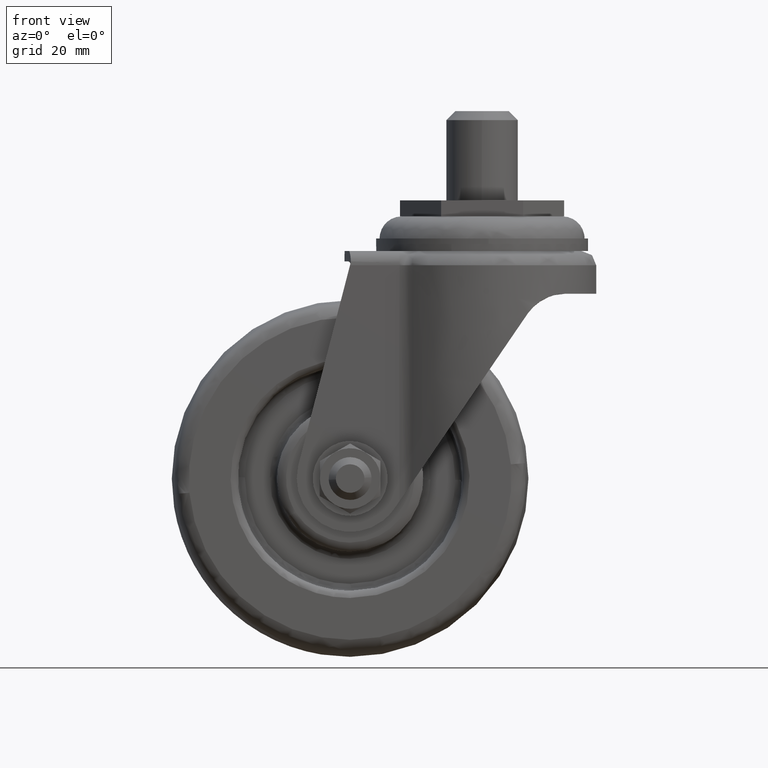
[diagram: clean part render]
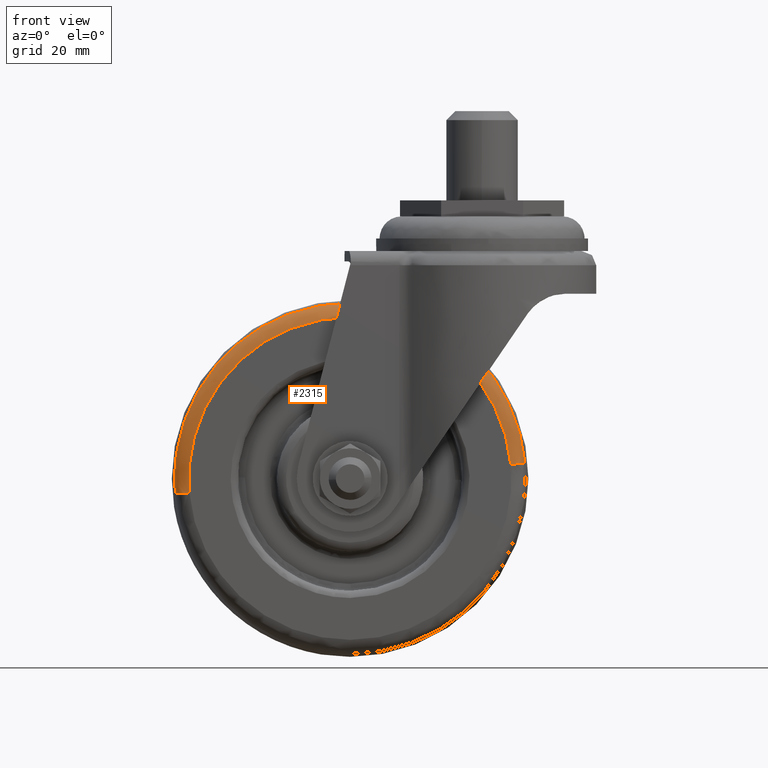
[diagram: same view with one face highlighted and labeled with its STEP entity id]
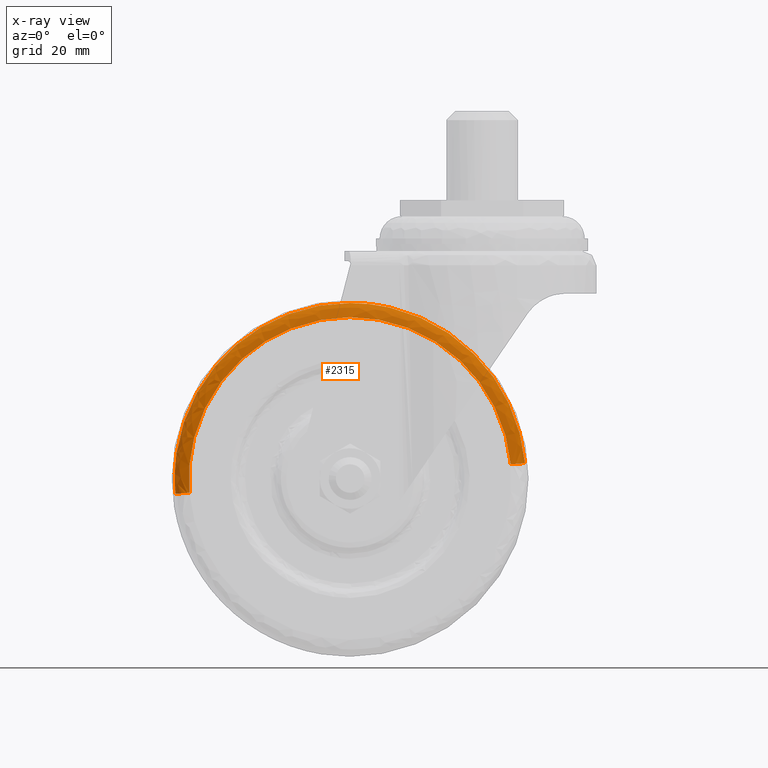
[diagram: x-ray of the same camera — body ghosted, the highlighted face saturated]
A machine part, front view. The second image highlights one B-rep face of the part: STEP entity #2315.
The next image is the same camera in x-ray: the body ghosted, the highlighted face saturated — about 0% of this face is hidden behind the body in this view.
In plain terms, the highlighted face is a freeform B-spline surface patch.
Its self-contained STEP definition (entity closure, byte-faithful):
#1895=CARTESIAN_POINT('',(8.052541164142092,-19.000000000000249,-69.526718090209954));
#1896=VERTEX_POINT('',#1895);
#1912=CARTESIAN_POINT('',(-37.0,-19.000000000000249,-28.272592000000000));
#1913=VERTEX_POINT('',#1912);
#1914=CARTESIAN_POINT('',(8.052541164142093,-19.000000000000245,-69.526718090209954));
#1915=CARTESIAN_POINT('',(4.414249767389972,-19.000000000000242,-28.272591999959747));
#1916=CARTESIAN_POINT('',(-37.0,-19.000000000000249,-28.272592000000000));
#1924=(BOUNDED_CURVE()B_SPLINE_CURVE(2,(#1914,#1915,#1916),.UNSPECIFIED.,.F.,.U.)B_SPLINE_CURVE_WITH_KNOTS((3,3),(0.265281545144037,0.500000000000000),.UNSPECIFIED.)CURVE()GEOMETRIC_REPRESENTATION_ITEM()RATIONAL_B_SPLINE_CURVE((0.966381850709755,0.725010224969267,1.0))REPRESENTATION_ITEM(''));
#1925=EDGE_CURVE('',#1896,#1913,#1924,.T.);
#1927=CARTESIAN_POINT('',(-82.052541164142099,-19.000000000000249,-77.473281909790018));
#1928=VERTEX_POINT('',#1927);
#1929=CARTESIAN_POINT('',(-37.0,-19.000000000000249,-28.272592000000000));
#1930=CARTESIAN_POINT('',(-82.227408000418052,-19.000000000000252,-28.272592000036880));
#1931=CARTESIAN_POINT('',(-82.227408000874632,-19.000000000000249,-73.500000000077137));
#1932=CARTESIAN_POINT('',(-82.227408000894741,-19.000000000000245,-75.490488959089575));
#1933=CARTESIAN_POINT('',(-82.052541164142099,-19.000000000000249,-77.473281909790018));
#1941=(BOUNDED_CURVE()B_SPLINE_CURVE(2,(#1929,#1930,#1931,#1932,#1933),.UNSPECIFIED.,.F.,.U.)B_SPLINE_CURVE_WITH_KNOTS((3,2,3),(0.500000000000000,0.750000000000000,0.765281545144036),.UNSPECIFIED.)CURVE()GEOMETRIC_REPRESENTATION_ITEM()RATIONAL_B_SPLINE_CURVE((1.0,0.707106781186547,1.0,0.982096556217280,0.966381850709756))REPRESENTATION_ITEM(''));
#1942=EDGE_CURVE('',#1913,#1928,#1941,.T.);
#2186=CARTESIAN_POINT('',(-86.015992020186616,-15.410927758390800,-77.822827289051205));
#2187=VERTEX_POINT('',#2186);
#2188=CARTESIAN_POINT('',(-86.015992020186630,-15.410927758390802,-77.822827289051205));
#2189=CARTESIAN_POINT('',(-85.646752300901653,-18.999999810369800,-77.790263232512899));
#2190=CARTESIAN_POINT('',(-82.052541164142085,-19.000000000000245,-77.473281909790018));
#2198=(BOUNDED_CURVE()B_SPLINE_CURVE(2,(#2188,#2189,#2190),.UNSPECIFIED.,.F.,.U.)B_SPLINE_CURVE_WITH_KNOTS((3,3),(-1.718121120609089,-0.279319898095702),.UNSPECIFIED.)CURVE()GEOMETRIC_REPRESENTATION_ITEM()RATIONAL_B_SPLINE_CURVE((0.892444121592151,0.662979182802316,0.893261806059878))REPRESENTATION_ITEM(''));
#2199=EDGE_CURVE('',#2187,#1928,#2198,.T.);
#2216=CARTESIAN_POINT('',(12.015992020187319,-15.410927758384091,-69.177172710948724));
#2217=VERTEX_POINT('',#2216);
#2233=CARTESIAN_POINT('',(12.015992020187316,-15.410927758384089,-69.177172710948724));
#2234=CARTESIAN_POINT('',(11.646752300907758,-18.999999810369800,-69.209736767486518));
#2235=CARTESIAN_POINT('',(8.052541164142092,-19.000000000000242,-69.526718090209940));
#2243=(BOUNDED_CURVE()B_SPLINE_CURVE(2,(#2233,#2234,#2235),.UNSPECIFIED.,.F.,.U.)B_SPLINE_CURVE_WITH_KNOTS((3,3),(-1.718121120610900,-0.279319898095700),.UNSPECIFIED.)CURVE()GEOMETRIC_REPRESENTATION_ITEM()RATIONAL_B_SPLINE_CURVE((0.892444121592728,0.662979182802026,0.893261806059879))REPRESENTATION_ITEM(''));
#2244=EDGE_CURVE('',#2217,#1896,#2243,.T.);
#2250=CARTESIAN_POINT('',(12.155268994308486,-15.147337058507809,-70.546392844663146));
#2251=CARTESIAN_POINT('',(12.095172300344993,-15.147337058507812,-69.864964030875171));
#2252=CARTESIAN_POINT('',(7.709923311756933,-15.147337058507814,-20.141180252124727));
#2253=CARTESIAN_POINT('',(-41.324448218059167,-15.147337058507814,-24.465628470183894));
#2254=CARTESIAN_POINT('',(-90.358819747875302,-15.147337058507814,-28.790076688243047));
#2255=CARTESIAN_POINT('',(-85.973570759284058,-15.147337058507818,-78.513860467029374));
#2256=CARTESIAN_POINT('',(-85.913474065317473,-15.147337058507809,-79.195289280852393));
#2257=CARTESIAN_POINT('',(12.003784803016709,-19.262939673826988,-70.555495119973074));
#2258=CARTESIAN_POINT('',(11.943873311967788,-19.262939673826981,-69.876166298615033));
#2259=CARTESIAN_POINT('',(7.572138559192907,-19.262939673826985,-20.305618730911739));
#2260=CARTESIAN_POINT('',(-41.311121354947680,-19.262939673826978,-24.616740085859412));
#2261=CARTESIAN_POINT('',(-90.194381269088268,-19.262939673826985,-28.927861440807099));
#2262=CARTESIAN_POINT('',(-85.822646516310229,-19.262939673826978,-78.498409008546162));
#2263=CARTESIAN_POINT('',(-85.762735025258252,-19.262939673826985,-79.177737829939119));
#2264=CARTESIAN_POINT('',(7.900152004543736,-18.991288995678907,-70.802071315046845));
#2265=CARTESIAN_POINT('',(7.845257570047938,-18.991288995678911,-70.179630263551459));
#2266=CARTESIAN_POINT('',(3.839616868780008,-18.991288995678907,-24.760176854284865));
#2267=CARTESIAN_POINT('',(-40.950103138467568,-18.991288995678907,-28.710279992752429));
#2268=CARTESIAN_POINT('',(-85.739823145715135,-18.991288995678907,-32.660383131219994));
#2269=CARTESIAN_POINT('',(-81.734182444444315,-18.991288995678907,-78.079836540519352));
#2270=CARTESIAN_POINT('',(-81.679288009945708,-18.991288995678907,-78.702277592046741));
#2278=(BOUNDED_SURFACE()B_SPLINE_SURFACE(2,2,((#2250,#2257,#2264),(#2251,#2258,#2265),(#2252,#2259,#2266),(#2253,#2260,#2267),(#2254,#2261,#2268),(#2255,#2262,#2269),(#2256,#2263,#2270)),.UNSPECIFIED.,.F.,.F.,.U.)B_SPLINE_SURFACE_WITH_KNOTS((3,1,2,1,3),(3,3),(0.0,1.631162849909941,83.189305346723486,164.747447843537000,166.378610693532290),(0.0,6.765969405124793),.UNSPECIFIED.)GEOMETRIC_REPRESENTATION_ITEM()RATIONAL_B_SPLINE_SURFACE(((0.927252396920125,0.646352514571654,0.928162281947236),(0.921883577765421,0.642610114150313,0.922788194530969),(0.648073800871190,0.451747692658902,0.648709736297007),(0.916514758610717,0.638867713728972,0.917414107114702),(0.648073800871190,0.451747692658902,0.648709736297007),(0.921883577765702,0.642610114150509,0.922788194531250),(0.927252396920687,0.646352514572046,0.928162281947798)))REPRESENTATION_ITEM('')SURFACE());
#2279=ORIENTED_EDGE('',*,*,#1942,.F.);
#2280=ORIENTED_EDGE('',*,*,#1925,.F.);
#2281=ORIENTED_EDGE('',*,*,#2244,.F.);
#2282=CARTESIAN_POINT('',(-37.0,-15.410927594335110,-24.293755791920109));
#2283=VERTEX_POINT('',#2282);
#2284=CARTESIAN_POINT('',(12.015992020187317,-15.410927758384091,-69.177172710948724));
#2285=CARTESIAN_POINT('',(8.057625263915982,-15.410927676342178,-24.293755722190298));
#2286=CARTESIAN_POINT('',(-37.0,-15.410927594335110,-24.293755791920109));
#2294=(BOUNDED_CURVE()B_SPLINE_CURVE(2,(#2284,#2285,#2286),.UNSPECIFIED.,.F.,.U.)B_SPLINE_CURVE_WITH_KNOTS((3,3),(0.265281544161601,0.500000000000000),.UNSPECIFIED.)CURVE()GEOMETRIC_REPRESENTATION_ITEM()RATIONAL_B_SPLINE_CURVE((0.966381852730322,0.725010223818272,1.0))REPRESENTATION_ITEM(''));
#2295=EDGE_CURVE('',#2217,#2283,#2294,.T.);
#2296=ORIENTED_EDGE('',*,*,#2295,.T.);
#2297=CARTESIAN_POINT('',(-37.0,-15.410927594335110,-24.293755791920109));
#2298=CARTESIAN_POINT('',(-86.206241698212594,-15.410927669428089,-24.293755855770925));
#2299=CARTESIAN_POINT('',(-86.206242488870075,-15.410927751473359,-73.500000133576677));
#2300=CARTESIAN_POINT('',(-86.206242523667456,-15.410927755084238,-75.665600239114184));
#2301=CARTESIAN_POINT('',(-86.015992020186616,-15.410927758390802,-77.822827289051205));
#2309=(BOUNDED_CURVE()B_SPLINE_CURVE(2,(#2297,#2298,#2299,#2300,#2301),.UNSPECIFIED.,.F.,.U.)B_SPLINE_CURVE_WITH_KNOTS((3,2,3),(0.500000000000000,0.750000000000000,0.765281544161628),.UNSPECIFIED.)CURVE()GEOMETRIC_REPRESENTATION_ITEM()RATIONAL_B_SPLINE_CURVE((1.0,0.707106781186548,1.0,0.982096557368243,0.966381852730265))REPRESENTATION_ITEM(''));
#2310=EDGE_CURVE('',#2283,#2187,#2309,.T.);
#2311=ORIENTED_EDGE('',*,*,#2310,.T.);
#2312=ORIENTED_EDGE('',*,*,#2199,.T.);
#2313=EDGE_LOOP('',(#2279,#2280,#2281,#2296,#2311,#2312));
#2314=FACE_OUTER_BOUND('',#2313,.T.);
#2315=ADVANCED_FACE('',(#2314),#2278,.T.);